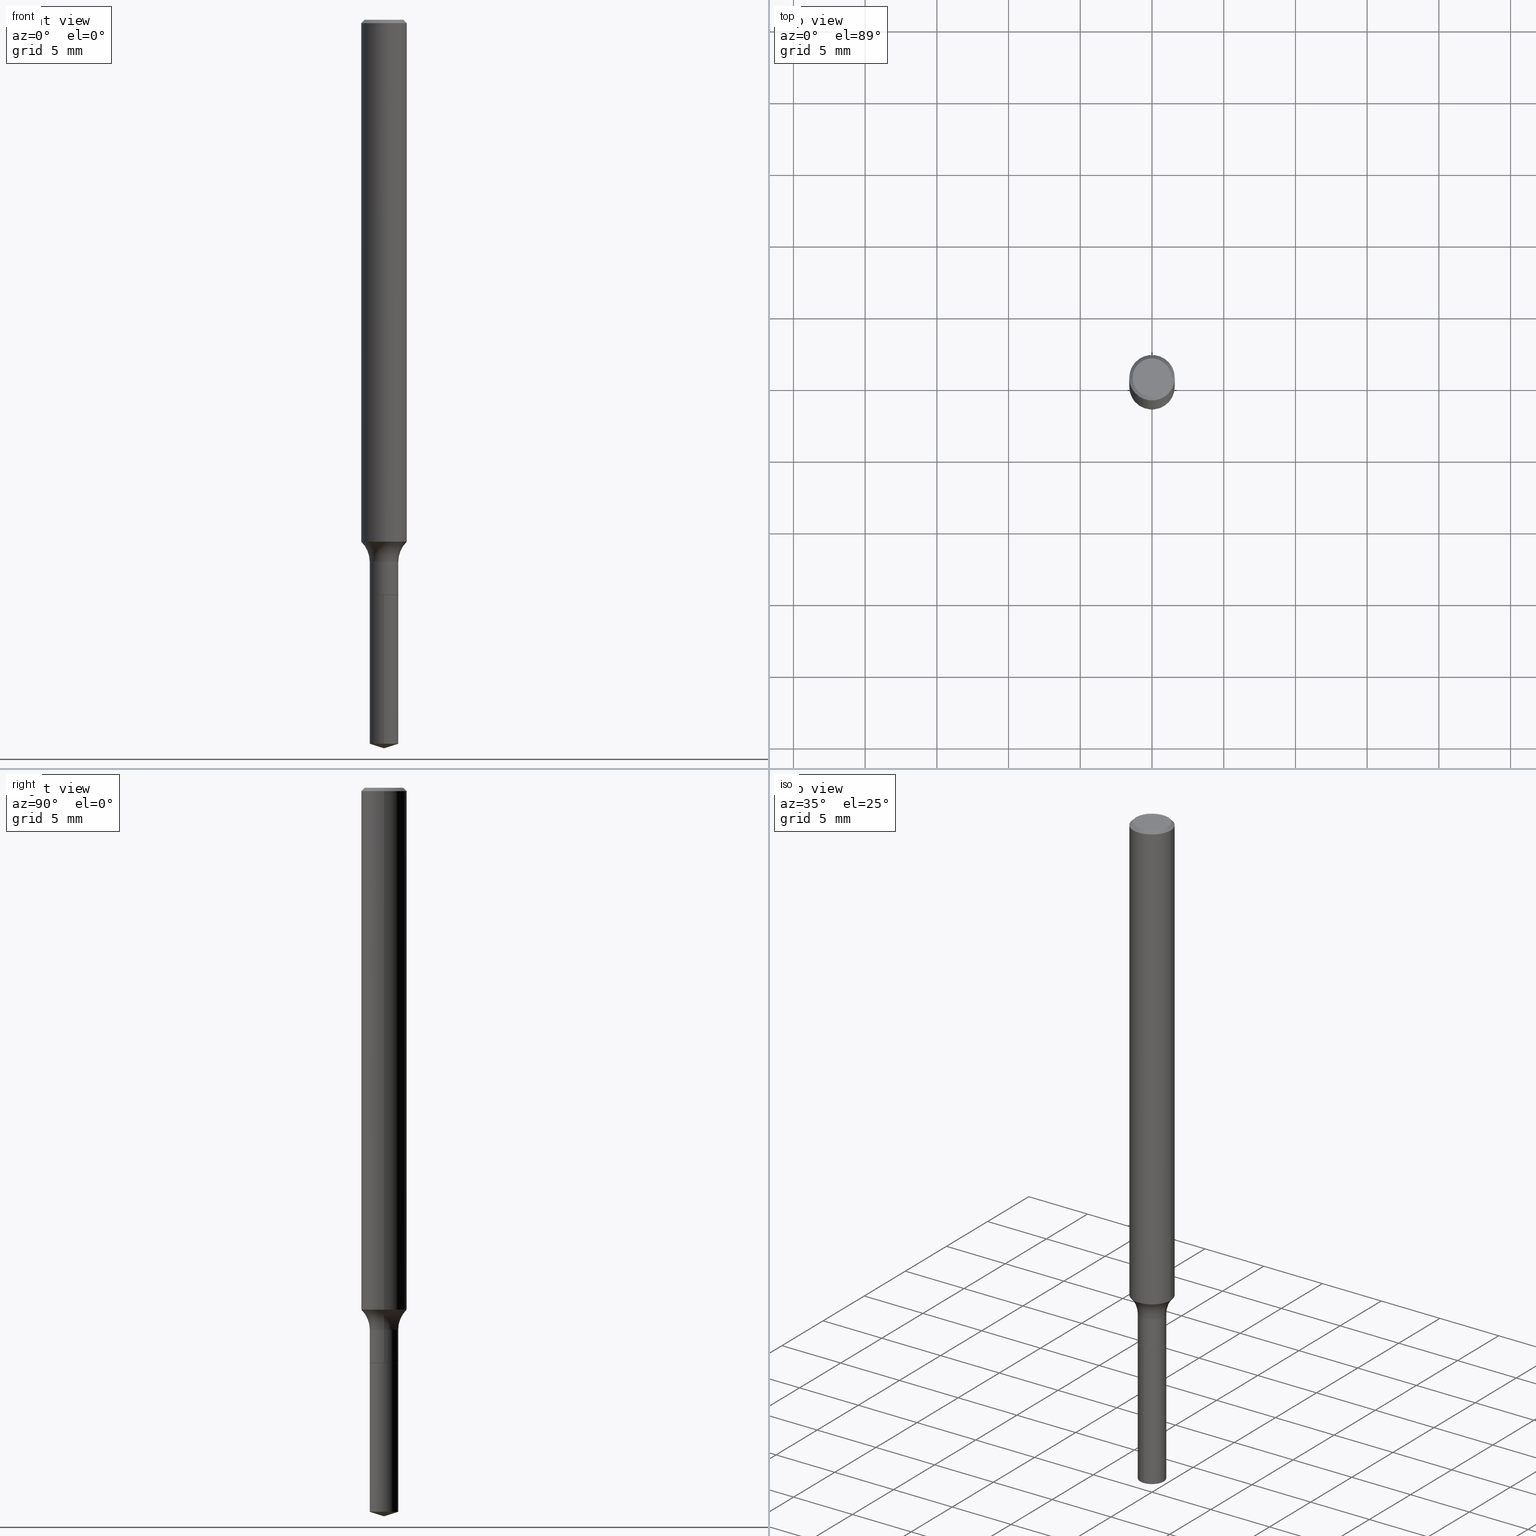
[diagram: canonical four-view strip — front | top / right | iso, engineering-drawing reading convention]
A machine part, canonical four-view strip (front | top / right | iso — engineering-drawing reading convention). The complete STEP part file that produces these views, byte-faithful:
ISO-10303-21;
HEADER;
FILE_DESCRIPTION (( 'STEP AP203' ),
    '1' );
FILE_NAME ('64506.STEP',
    '2024-04-19T15:40:45',
    ( '' ),
    ( '' ),
    'SwSTEP 2.0',
    'SolidWorks 2023',
    '' );
FILE_SCHEMA (( 'CONFIG_CONTROL_DESIGN' ));
ENDSEC;

DATA;
#1 = CALENDAR_DATE ( 2024, 19, 4 ) ;
#2 = DIRECTION ( 'NONE',  ( -2.445468806185136597E-29, 3.491481338843145583E-15, 1.000000000000000000 ) ) ;
#3 = EDGE_CURVE ( 'NONE', #393, #280, #43, .T. ) ;
#4 = EDGE_LOOP ( 'NONE', ( #198, #55, #113, #190 ) ) ;
#5 = CONICAL_SURFACE ( 'NONE', #302, 0.06250000000000001388, 0.7853981633974449483 ) ;
#6 = DIRECTION ( 'NONE',  ( -6.982962677686264344E-15, -1.000000000000000000, 6.960122276851625723E-15 ) ) ;
#7 = ORIENTED_EDGE ( 'NONE', *, *, #69, .T. ) ;
#8 = PERSON_AND_ORGANIZATION ( #367, #98 ) ;
#9 = CYLINDRICAL_SURFACE ( 'NONE', #241, 0.03924999999999997935 ) ;
#10 = ORIENTED_EDGE ( 'NONE', *, *, #69, .F. ) ;
#11 = CC_DESIGN_DATE_AND_TIME_ASSIGNMENT ( #300, #150, ( #412 ) ) ;
#12 = PERSON_AND_ORGANIZATION_ROLE ( 'classification_officer' ) ;
#13 = CARTESIAN_POINT ( 'NONE',  ( 3.860172510563238293E-29, -5.511303293363906070E-15, -1.578500000000000014 ) ) ;
#14 = ORIENTED_EDGE ( 'NONE', *, *, #454, .F. ) ;
#15 = LOCAL_TIME ( 11, 40, 45.00000000000000000, #268 ) ;
#16 = CARTESIAN_POINT ( 'NONE',  ( -0.03924999999999997935, -5.073902016794587862E-15, -1.488199999999999967 ) ) ;
#17 = CONICAL_SURFACE ( 'NONE', #291, 0.03874999999999999972, 0.7853981633975420928 ) ;
#18 = CARTESIAN_POINT ( 'NONE',  ( -8.782355238379108562E-48, 1.253887571509288664E-33, 3.591276738499616421E-19 ) ) ;
#19 = DIRECTION ( 'NONE',  ( -2.445468806185136597E-29, 3.491481338843145583E-15, 1.000000000000000000 ) ) ;
#20 = DIRECTION ( 'NONE',  ( -6.982962677686264344E-15, -1.000000000000000000, 6.960122276851625723E-15 ) ) ;
#21 = EDGE_CURVE ( 'NONE', #270, #196, #42, .T. ) ;
#22 = CARTESIAN_POINT ( 'NONE',  ( 0.03874999999999999972, -5.781893097124248589E-15, -1.578500000000000014 ) ) ;
#23 = CARTESIAN_POINT ( 'NONE',  ( 0.1172499999999999515, -6.014774902425083476E-15, -1.488199999999999967 ) ) ;
#24 = CARTESIAN_POINT ( 'NONE',  ( 0.05312499999999999861, -4.129888592719940335E-16, 3.591276738527027701E-19 ) ) ;
#25 = CARTESIAN_POINT ( 'NONE',  ( 2.788880237858778304E-16, 0.03924999999999448375, -1.578500000000000458 ) ) ;
#26 = EDGE_CURVE ( 'NONE', #278, #379, #485, .T. ) ;
#27 = DIRECTION ( 'NONE',  ( 1.000000000000000000, -6.982962677686279332E-15, 0.000000000000000000 ) ) ;
#28 = DIRECTION ( 'NONE',  ( -6.982962677686264344E-15, -1.000000000000000000, 6.960122276851625723E-15 ) ) ;
#29 = FACE_OUTER_BOUND ( 'NONE', #235, .T. ) ;
#30 = PERSON_AND_ORGANIZATION ( #367, #98 ) ;
#31 = CC_DESIGN_SECURITY_CLASSIFICATION ( #412, ( #160 ) ) ;
#32 = EDGE_CURVE ( 'NONE', #347, #278, #304, .T. ) ;
#33 = DIRECTION ( 'NONE',  ( -2.445468806185136597E-29, 3.491481338843145583E-15, 1.000000000000000000 ) ) ;
#34 = AXIS2_PLACEMENT_3D ( 'NONE', #298, #447, #292 ) ;
#35 = ORIENTED_EDGE ( 'NONE', *, *, #21, .T. ) ;
#36 = TOROIDAL_SURFACE ( 'NONE', #314, 0.1172499999999999515, 0.07800000000000002764 ) ;
#37 = DATE_TIME_ROLE ( 'creation_date' ) ;
#38 = ORIENTED_EDGE ( 'NONE', *, *, #272, .F. ) ;
#39 = PRODUCT_RELATED_PRODUCT_CATEGORY ( 'detail', '', ( #403 ) ) ;
#40 = VERTEX_POINT ( 'NONE', #209 ) ;
#41 = DIRECTION ( 'NONE',  ( -2.445497786543332994E-29, 3.491439837320748932E-15, 1.000000000000000000 ) ) ;
#42 = LINE ( 'NONE', #155, #413 ) ;
#43 = CIRCLE ( 'NONE', #91, 0.05312499999999999861 ) ;
#44 = PERSON_AND_ORGANIZATION ( #367, #98 ) ;
#45 = ORIENTED_EDGE ( 'NONE', *, *, #249, .T. ) ;
#46 = ADVANCED_FACE ( 'NONE', ( #327 ), #17, .T. ) ;
#47 = PERSON_AND_ORGANIZATION_ROLE ( 'design_supplier' ) ;
#48 = DIRECTION ( 'NONE',  ( 1.000000000000000000, -6.982962677686266711E-15, 4.876176775795935793E-29 ) ) ;
#49 = ORIENTED_EDGE ( 'NONE', *, *, #59, .F. ) ;
#50 = DIRECTION ( 'NONE',  ( -2.445468806185136877E-29, 3.491481338843145188E-15, 1.000000000000000000 ) ) ;
#51 = ORIENTED_EDGE ( 'NONE', *, *, #362, .F. ) ;
#52 = CONICAL_SURFACE ( 'NONE', #250, 0.03874999999999999972, 0.7853981633975420928 ) ;
#53 = EDGE_CURVE ( 'NONE', #187, #85, #318, .T. ) ;
#54 = CARTESIAN_POINT ( 'NONE',  ( 2.292627005798583689E-31, -3.273263755165475115E-17, -0.009375000000000074246 ) ) ;
#55 = ORIENTED_EDGE ( 'NONE', *, *, #59, .T. ) ;
#56 = FACE_OUTER_BOUND ( 'NONE', #452, .T. ) ;
#57 = CARTESIAN_POINT ( 'NONE',  ( -4.391177619189554281E-48, 6.269437857546443321E-34, 1.795638369249808211E-19 ) ) ;
#58 = CARTESIAN_POINT ( 'NONE',  ( 0.06250000000000020817, -5.438485952664117862E-15, -1.432644284722451422 ) ) ;
#59 = EDGE_CURVE ( 'NONE', #85, #313, #164, .T. ) ;
#60 = TOROIDAL_SURFACE ( 'NONE', #260, 0.1172499999999999515, 0.07800000000000002764 ) ;
#61 = DIRECTION ( 'NONE',  ( -6.659769872151614734E-15, -0.9537169507482242681, 0.3007057995042813903 ) ) ;
#62 = APPROVAL ( #421, 'UNSPECIFIED' ) ;
#63 = DIRECTION ( 'NONE',  ( -2.445497786543332994E-29, 3.491439837320748932E-15, 1.000000000000000000 ) ) ;
#64 = CARTESIAN_POINT ( 'NONE',  ( 3.860172510563238293E-29, -5.511303293363906070E-15, -1.578500000000000014 ) ) ;
#65 = EDGE_CURVE ( 'NONE', #85, #470, #191, .T. ) ;
#66 = CARTESIAN_POINT ( 'NONE',  ( 3.860172510563238293E-29, -5.511303293363906070E-15, -1.578500000000000014 ) ) ;
#67 = CALENDAR_DATE ( 2024, 19, 4 ) ;
#68 = VECTOR ( 'NONE', #84, 39.37007874015748143 ) ;
#69 = EDGE_CURVE ( 'NONE', #379, #146, #211, .T. ) ;
#70 = ORIENTED_EDGE ( 'NONE', *, *, #53, .T. ) ;
#71 = VERTEX_POINT ( 'NONE', #478 ) ;
#72 = DIRECTION ( 'NONE',  ( -6.982962677686267499E-15, -1.000000000000000000, 3.500519750498801856E-15 ) ) ;
#73 =( NAMED_UNIT ( * ) SI_UNIT ( $, .STERADIAN. ) SOLID_ANGLE_UNIT ( ) );
#74 = CIRCLE ( 'NONE', #448, 0.03874999999999999972 ) ;
#75 = EDGE_LOOP ( 'NONE', ( #339, #232, #10, #121 ) ) ;
#76 = VECTOR ( 'NONE', #283, 39.37007874015748143 ) ;
#77 = ORIENTED_EDGE ( 'NONE', *, *, #203, .T. ) ;
#78 = APPROVAL_DATE_TIME ( #114, #62 ) ;
#79 = EDGE_CURVE ( 'NONE', #83, #379, #329, .T. ) ;
#80 = ORIENTED_EDGE ( 'NONE', *, *, #3, .T. ) ;
#81 = EDGE_LOOP ( 'NONE', ( #297, #128 ) ) ;
#82 = CONICAL_SURFACE ( 'NONE', #350, 124.8659371009115944, 1.265363707695883688 ) ;
#83 = VERTEX_POINT ( 'NONE', #244 ) ;
#84 = DIRECTION ( 'NONE',  ( -2.445468806185136877E-29, 3.491481338843145188E-15, 1.000000000000000000 ) ) ;
#85 = VERTEX_POINT ( 'NONE', #406 ) ;
#86 = EDGE_CURVE ( 'NONE', #40, #431, #404, .T. ) ;
#87 = CARTESIAN_POINT ( 'NONE',  ( 3.860172510563238293E-29, -5.511303293363906070E-15, -1.578500000000000014 ) ) ;
#88 = VERTEX_POINT ( 'NONE', #364 ) ;
#89 = AXIS2_PLACEMENT_3D ( 'NONE', #353, #19, #163 ) ;
#90 = CARTESIAN_POINT ( 'NONE',  ( 3.860172510563238293E-29, -5.511303293363906070E-15, -1.578500000000000014 ) ) ;
#91 = AXIS2_PLACEMENT_3D ( 'NONE', #18, #396, #229 ) ;
#92 = DESIGN_CONTEXT ( 'detailed design', #216, 'design' ) ;
#93 = CARTESIAN_POINT ( 'NONE',  ( -0.06250000000000001388, 4.037025298037369984E-16, -0.009375000000000074246 ) ) ;
#94 = ADVANCED_FACE ( 'NONE', ( #256 ), #136, .F. ) ;
#95 = LINE ( 'NONE', #93, #124 ) ;
#96 = DIRECTION ( 'NONE',  ( -1.000000000000000000, 6.982962677686265922E-15, -4.876176775795935793E-29 ) ) ;
#97 = CC_DESIGN_PERSON_AND_ORGANIZATION_ASSIGNMENT ( #221, #365, ( #403 ) ) ;
#98 = ORGANIZATION ( 'UNSPECIFIED', 'UNSPECIFIED', '' ) ;
#99 = CYLINDRICAL_SURFACE ( 'NONE', #89, 0.06250000000000009714 ) ;
#100 = DIRECTION ( 'NONE',  ( -2.445468806185136597E-29, 3.491481338843145583E-15, 1.000000000000000000 ) ) ;
#101 = ADVANCED_FACE ( 'NONE', ( #29 ), #484, .T. ) ;
#102 = CARTESIAN_POINT ( 'NONE',  ( -2.740812850991374061E-16, -0.03925000000000695294, -1.987624522536499683 ) ) ;
#103 = DIRECTION ( 'NONE',  ( 1.000000000000000000, -6.982962677686263555E-15, 0.000000000000000000 ) ) ;
#104 = LOCAL_TIME ( 11, 40, 45.00000000000000000, #176 ) ;
#105 = ADVANCED_FACE ( 'NONE', ( #248 ), #402, .T. ) ;
#106 = VECTOR ( 'NONE', #321, 39.37007874015748143 ) ;
#107 = EDGE_LOOP ( 'NONE', ( #38, #70, #123 ) ) ;
#108 = AXIS2_PLACEMENT_3D ( 'NONE', #397, #317, #205 ) ;
#109 =( CONVERSION_BASED_UNIT ( 'INCH', #144 ) LENGTH_UNIT ( ) NAMED_UNIT ( #309 ) );
#110 = ORIENTED_EDGE ( 'NONE', *, *, #276, .T. ) ;
#111 = APPROVAL_DATE_TIME ( #453, #301 ) ;
#112 = ADVANCED_FACE ( 'NONE', ( #122 ), #36, .F. ) ;
#113 = ORIENTED_EDGE ( 'NONE', *, *, #246, .F. ) ;
#114 = DATE_AND_TIME ( #424, #290 ) ;
#115 = ORIENTED_EDGE ( 'NONE', *, *, #21, .F. ) ;
#116 = AXIS2_PLACEMENT_3D ( 'NONE', #154, #2, #127 ) ;
#117 = CARTESIAN_POINT ( 'NONE',  ( 0.06250000000000009714, -4.364351673553923597E-16, 3.047610484872464775E-30 ) ) ;
#118 = MANIFOLD_SOLID_BREP ( 'Body-Move/Copy2[2]', #134 ) ;
#119 = ORIENTED_EDGE ( 'NONE', *, *, #186, .F. ) ;
#120 = DIRECTION ( 'NONE',  ( -6.982962677686264344E-15, -1.000000000000000000, 6.960122276851625723E-15 ) ) ;
#121 = ORIENTED_EDGE ( 'NONE', *, *, #79, .F. ) ;
#122 = FACE_OUTER_BOUND ( 'NONE', #126, .T. ) ;
#123 = ORIENTED_EDGE ( 'NONE', *, *, #373, .F. ) ;
#124 = VECTOR ( 'NONE', #168, 39.37007874015748143 ) ;
#125 = AXIS2_PLACEMENT_3D ( 'NONE', #66, #389, #228 ) ;
#126 = EDGE_LOOP ( 'NONE', ( #388, #458, #427, #7 ) ) ;
#127 = DIRECTION ( 'NONE',  ( 1.000000000000000000, -6.982962677686279332E-15, 0.000000000000000000 ) ) ;
#128 = ORIENTED_EDGE ( 'NONE', *, *, #178, .T. ) ;
#129 = LINE ( 'NONE', #165, #215 ) ;
#130 = DIRECTION ( 'NONE',  ( 1.000000000000000000, -6.982962677686258033E-15, 0.000000000000000000 ) ) ;
#131 = AXIS2_PLACEMENT_3D ( 'NONE', #179, #491, #295 ) ;
#132 = ADVANCED_FACE ( 'NONE', ( #461 ), #156, .T. ) ;
#133 = CARTESIAN_POINT ( 'NONE',  ( -9.138849058750058869E-28, 1.304753161270459105E-13, 37.37007874015748143 ) ) ;
#134 = CLOSED_SHELL ( 'NONE', ( #46, #357, #410, #287, #219, #132, #112, #101, #487, #94, #143, #473 ) ) ;
#135 = CARTESIAN_POINT ( 'NONE',  ( -0.06250000000000020817, -4.557961575458662787E-15, -1.432644284722451422 ) ) ;
#136 = PLANE ( 'NONE',  #489 ) ;
#137 = CARTESIAN_POINT ( 'NONE',  ( -0.05312499999999999861, 3.873362110279099094E-16, 3.591276738473101181E-19 ) ) ;
#138 = DIRECTION ( 'NONE',  ( 1.000000000000000000, -6.982962677686263555E-15, 0.000000000000000000 ) ) ;
#139 = AXIS2_PLACEMENT_3D ( 'NONE', #360, #363, #28 ) ;
#140 = DIRECTION ( 'NONE',  ( -6.982962677686264344E-15, -1.000000000000000000, 6.960122276851625723E-15 ) ) ;
#141 = CIRCLE ( 'NONE', #422, 0.03925000000000000017 ) ;
#142 = DIRECTION ( 'NONE',  ( -2.445468806185136597E-29, 3.491481338843145583E-15, 1.000000000000000000 ) ) ;
#143 = ADVANCED_FACE ( 'NONE', ( #344 ), #385, .F. ) ;
#144 = LENGTH_MEASURE_WITH_UNIT ( LENGTH_MEASURE( 0.02539999999999999897 ), #180 );
#145 = APPLICATION_PROTOCOL_DEFINITION ( 'international standard', 'config_control_design', 1994, #417 ) ;
#146 = VERTEX_POINT ( 'NONE', #16 ) ;
#147 = APPROVAL_STATUS ( 'not_yet_approved' ) ;
#148 = ORIENTED_EDGE ( 'NONE', *, *, #65, .T. ) ;
#149 = ORIENTED_EDGE ( 'NONE', *, *, #53, .F. ) ;
#150 = DATE_TIME_ROLE ( 'classification_date' ) ;
#151 = AXIS2_PLACEMENT_3D ( 'NONE', #238, #435, #27 ) ;
#152 = EDGE_LOOP ( 'NONE', ( #159, #51 ) ) ;
#153 = CIRCLE ( 'NONE', #259, 0.03925000000000000017 ) ;
#154 = CARTESIAN_POINT ( 'NONE',  ( 3.858949776160146052E-29, -5.509557552694484566E-15, -1.578000000000000291 ) ) ;
#155 = CARTESIAN_POINT ( 'NONE',  ( -0.03874999999999999972, -5.235967983256867595E-15, -1.578500000000000014 ) ) ;
#156 = CYLINDRICAL_SURFACE ( 'NONE', #476, 0.03924999999999997935 ) ;
#157 = ORIENTED_EDGE ( 'NONE', *, *, #3, .F. ) ;
#158 = LINE ( 'NONE', #117, #456 ) ;
#159 = ORIENTED_EDGE ( 'NONE', *, *, #276, .F. ) ;
#160 = PRODUCT_DEFINITION_FORMATION_WITH_SPECIFIED_SOURCE ( 'ANY', '', #403, .NOT_KNOWN. ) ;
#161 = CARTESIAN_POINT ( 'NONE',  ( 0.000000000000000000, 0.000000000000000000, 0.000000000000000000 ) ) ;
#162 = ORIENTED_EDGE ( 'NONE', *, *, #224, .F. ) ;
#163 = DIRECTION ( 'NONE',  ( 1.000000000000000000, -6.982962677686266711E-15, 4.876176775795935793E-29 ) ) ;
#164 = LINE ( 'NONE', #25, #106 ) ;
#165 = CARTESIAN_POINT ( 'NONE',  ( 0.06250000000000001388, -4.615137624123755909E-16, -0.009375000000000074246 ) ) ;
#166 = DIRECTION ( 'NONE',  ( -2.445468806185136597E-29, 3.491481338843145583E-15, 1.000000000000000000 ) ) ;
#167 = APPROVAL_PERSON_ORGANIZATION ( #30, #301, #174 ) ;
#168 = DIRECTION ( 'NONE',  ( -0.7071067811865451302, 2.468850131082231817E-15, -0.7071067811865499042 ) ) ;
#169 =( GEOMETRIC_REPRESENTATION_CONTEXT ( 3 ) GLOBAL_UNCERTAINTY_ASSIGNED_CONTEXT ( ( #195 ) ) GLOBAL_UNIT_ASSIGNED_CONTEXT ( ( #109, #261, #73 ) ) REPRESENTATION_CONTEXT ( 'NONE', 'WORKASPACE' ) );
#170 = DIRECTION ( 'NONE',  ( -2.445497786543332994E-29, 3.491439837320748932E-15, 1.000000000000000000 ) ) ;
#171 = CARTESIAN_POINT ( 'NONE',  ( 4.860685624846846103E-29, -6.939736949772670000E-15, -1.987624522536499683 ) ) ;
#172 = DIRECTION ( 'NONE',  ( -1.000000000000000000, 6.982962677686265922E-15, 0.000000000000000000 ) ) ;
#173 = CARTESIAN_POINT ( 'NONE',  ( 2.292627005798583689E-31, -3.273263755165475115E-17, -0.009375000000000074246 ) ) ;
#174 = APPROVAL_ROLE ( '' ) ;
#175 = CIRCLE ( 'NONE', #369, 0.03924999999999997935 ) ;
#176 = COORDINATED_UNIVERSAL_TIME_OFFSET ( 5, 0, .BEHIND. ) ;
#177 = ORIENTED_EDGE ( 'NONE', *, *, #366, .F. ) ;
#178 = EDGE_CURVE ( 'NONE', #313, #88, #141, .T. ) ;
#179 = CARTESIAN_POINT ( 'NONE',  ( 2.292627005798583689E-31, -3.273263755165475115E-17, -0.009375000000000074246 ) ) ;
#180 =( LENGTH_UNIT ( ) NAMED_UNIT ( * ) SI_UNIT ( $, .METRE. ) );
#181 = CIRCLE ( 'NONE', #131, 0.06250000000000001388 ) ;
#182 = AXIS2_PLACEMENT_3D ( 'NONE', #356, #100, #472 ) ;
#183 = PERSON_AND_ORGANIZATION ( #367, #98 ) ;
#184 = EDGE_LOOP ( 'NONE', ( #115, #204, #415, #177 ) ) ;
#185 = CARTESIAN_POINT ( 'NONE',  ( 3.639346677364720273E-29, -5.196022528466369115E-15, -1.488199999999999967 ) ) ;
#186 = EDGE_CURVE ( 'NONE', #196, #146, #469, .T. ) ;
#187 = VERTEX_POINT ( 'NONE', #225 ) ;
#188 = CARTESIAN_POINT ( 'NONE',  ( -0.03924999999999998629, -5.073902016794587862E-15, -1.578000000000000291 ) ) ;
#189 = CIRCLE ( 'NONE', #151, 0.03924999999999998629 ) ;
#190 = ORIENTED_EDGE ( 'NONE', *, *, #299, .F. ) ;
#191 = CIRCLE ( 'NONE', #201, 0.03925000000000000017 ) ;
#192 = VECTOR ( 'NONE', #269, 39.37007874015748143 ) ;
#193 = PERSON_AND_ORGANIZATION ( #367, #98 ) ;
#194 = DIRECTION ( 'NONE',  ( 1.000000000000000000, -6.982962677686267499E-15, 4.883557194083113462E-29 ) ) ;
#195 = UNCERTAINTY_MEASURE_WITH_UNIT (LENGTH_MEASURE( 1.000000000000000082E-05 ), #109, 'distance_accuracy_value', 'NONE');
#196 = VERTEX_POINT ( 'NONE', #188 ) ;
#197 = EDGE_CURVE ( 'NONE', #83, #196, #233, .T. ) ;
#198 = ORIENTED_EDGE ( 'NONE', *, *, #373, .T. ) ;
#199 = CARTESIAN_POINT ( 'NONE',  ( 3.860172510563238293E-29, -5.511303293363906070E-15, -1.578500000000000014 ) ) ;
#200 = EDGE_LOOP ( 'NONE', ( #110, #35, #372, #223 ) ) ;
#201 = AXIS2_PLACEMENT_3D ( 'NONE', #206, #170, #20 ) ;
#202 = FACE_OUTER_BOUND ( 'NONE', #310, .T. ) ;
#203 = EDGE_CURVE ( 'NONE', #146, #379, #175, .T. ) ;
#204 = ORIENTED_EDGE ( 'NONE', *, *, #362, .T. ) ;
#205 = DIRECTION ( 'NONE',  ( 1.000000000000000000, -6.982962677686258033E-15, 0.000000000000000000 ) ) ;
#206 = CARTESIAN_POINT ( 'NONE',  ( 4.860685624846846103E-29, -6.939736949772670000E-15, -1.987624522536499683 ) ) ;
#207 = ADVANCED_BREP_SHAPE_REPRESENTATION ( '64506', ( #266, #118, #34 ), #169 ) ;
#208 = FACE_OUTER_BOUND ( 'NONE', #425, .T. ) ;
#209 = CARTESIAN_POINT ( 'NONE',  ( -0.06250000000000001388, -2.073302501580125400E-15, -0.009375000000000074246 ) ) ;
#210 = VECTOR ( 'NONE', #477, 39.37007874015748143 ) ;
#211 = CIRCLE ( 'NONE', #182, 0.03924999999999997935 ) ;
#212 = FACE_OUTER_BOUND ( 'NONE', #81, .T. ) ;
#213 = LINE ( 'NONE', #395, #401 ) ;
#214 = DIRECTION ( 'NONE',  ( 1.000000000000000000, -6.982962677686265922E-15, 0.000000000000000000 ) ) ;
#215 = VECTOR ( 'NONE', #475, 39.37007874015748143 ) ;
#216 = APPLICATION_CONTEXT ( 'configuration controlled 3d designs of mechanical parts and assemblies' ) ;
#217 = PERSON_AND_ORGANIZATION_ROLE ( 'creator' ) ;
#218 = EDGE_LOOP ( 'NONE', ( #119, #429, #433, #336 ) ) ;
#219 = ADVANCED_FACE ( 'NONE', ( #457 ), #9, .T. ) ;
#220 = ORIENTED_EDGE ( 'NONE', *, *, #272, .T. ) ;
#221 = PERSON_AND_ORGANIZATION ( #367, #98 ) ;
#222 = CC_DESIGN_APPROVAL ( #371, ( #160 ) ) ;
#223 = ORIENTED_EDGE ( 'NONE', *, *, #451, .F. ) ;
#224 = EDGE_CURVE ( 'NONE', #278, #431, #158, .T. ) ;
#225 = CARTESIAN_POINT ( 'NONE',  ( 4.890995573086665988E-29, -6.982879674641497074E-15, -2.000000000000000000 ) ) ;
#226 = ORIENTED_EDGE ( 'NONE', *, *, #440, .T. ) ;
#227 = APPROVAL_DATE_TIME ( #384, #371 ) ;
#228 = DIRECTION ( 'NONE',  ( -6.982962677686264344E-15, -1.000000000000000000, 6.960122276851625723E-15 ) ) ;
#229 = DIRECTION ( 'NONE',  ( 1.000000000000000000, -6.982962677686266711E-15, 4.876153107228683844E-29 ) ) ;
#230 = APPROVAL_STATUS ( 'not_yet_approved' ) ;
#231 = CARTESIAN_POINT ( 'NONE',  ( -8.782355238379108562E-48, 1.253887571509288664E-33, 3.591276738499616421E-19 ) ) ;
#232 = ORIENTED_EDGE ( 'NONE', *, *, #186, .T. ) ;
#233 = CIRCLE ( 'NONE', #116, 0.03924999999999998629 ) ;
#234 = CARTESIAN_POINT ( 'NONE',  ( -0.03924999999999997935, 2.788880237858391762E-16, -1.930682022925049823E-30 ) ) ;
#235 = EDGE_LOOP ( 'NONE', ( #351, #419, #374, #240 ) ) ;
#236 = CARTESIAN_POINT ( 'NONE',  ( -0.03874999999999999972, -5.233318756082756394E-15, -1.578500000000000014 ) ) ;
#237 = EDGE_LOOP ( 'NONE', ( #149, #220, #465 ) ) ;
#238 = CARTESIAN_POINT ( 'NONE',  ( 3.858949776160146052E-29, -5.509557552694484566E-15, -1.578000000000000291 ) ) ;
#239 = CIRCLE ( 'NONE', #466, 0.07800000000000002764 ) ;
#240 = ORIENTED_EDGE ( 'NONE', *, *, #86, .F. ) ;
#241 = AXIS2_PLACEMENT_3D ( 'NONE', #273, #275, #48 ) ;
#242 = CC_DESIGN_PERSON_AND_ORGANIZATION_ASSIGNMENT ( #8, #47, ( #160 ) ) ;
#243 = CARTESIAN_POINT ( 'NONE',  ( 0.03924999999999997935, -5.470103813565554641E-15, -1.488199999999999967 ) ) ;
#244 = CARTESIAN_POINT ( 'NONE',  ( 0.03924999999999998629, -5.783638837793670882E-15, -1.578000000000000291 ) ) ;
#245 = CYLINDRICAL_SURFACE ( 'NONE', #139, 0.03925000000000000017 ) ;
#246 = EDGE_CURVE ( 'NONE', #88, #313, #153, .T. ) ;
#247 = PLANE ( 'NONE',  #257 ) ;
#248 = FACE_OUTER_BOUND ( 'NONE', #4, .T. ) ;
#249 = EDGE_CURVE ( 'NONE', #280, #393, #284, .T. ) ;
#250 = AXIS2_PLACEMENT_3D ( 'NONE', #332, #33, #103 ) ;
#251 = CLOSED_SHELL ( 'NONE', ( #105, #480, #407, #325, #331 ) ) ;
#252 = DIRECTION ( 'NONE',  ( 1.000000000000000000, -6.982962677686263555E-15, 0.000000000000000000 ) ) ;
#253 = CARTESIAN_POINT ( 'NONE',  ( 0.03924999999999997935, -2.740812850991858225E-16, 1.913899384499903832E-30 ) ) ;
#254 = PRODUCT_DEFINITION ( 'UNKNOWN', '', #160, #92 ) ;
#255 = DIRECTION ( 'NONE',  ( 0.7071067811866138531, -2.468850131082952047E-15, 0.7071067811864811814 ) ) ;
#256 = FACE_OUTER_BOUND ( 'NONE', #316, .T. ) ;
#257 = AXIS2_PLACEMENT_3D ( 'NONE', #90, #289, #482 ) ;
#258 = CARTESIAN_POINT ( 'NONE',  ( -0.1172499999999999515, -4.362911170787651893E-15, -1.488199999999999967 ) ) ;
#259 = AXIS2_PLACEMENT_3D ( 'NONE', #312, #41, #120 ) ;
#260 = AXIS2_PLACEMENT_3D ( 'NONE', #405, #471, #358 ) ;
#261 =( NAMED_UNIT ( * ) PLANE_ANGLE_UNIT ( ) SI_UNIT ( $, .RADIAN. ) );
#262 = EDGE_CURVE ( 'NONE', #347, #40, #464, .T. ) ;
#263 = CALENDAR_DATE ( 2024, 19, 4 ) ;
#264 = ORIENTED_EDGE ( 'NONE', *, *, #394, .F. ) ;
#265 = CONICAL_SURFACE ( 'NONE', #488, 0.06250000000000001388, 0.7853981633974449483 ) ;
#266 = MANIFOLD_SOLID_BREP ( 'Body-Move/Copy2[1]', #251 ) ;
#267 = EDGE_LOOP ( 'NONE', ( #264, #157, #423, #342 ) ) ;
#268 = COORDINATED_UNIVERSAL_TIME_OFFSET ( 5, 0, .BEHIND. ) ;
#269 = DIRECTION ( 'NONE',  ( -2.445468806185136877E-29, 3.491481338843145188E-15, 1.000000000000000000 ) ) ;
#270 = VERTEX_POINT ( 'NONE', #236 ) ;
#271 = APPROVAL_ROLE ( '' ) ;
#272 = EDGE_CURVE ( 'NONE', #187, #470, #213, .T. ) ;
#273 = CARTESIAN_POINT ( 'NONE',  ( 0.000000000000000000, 0.000000000000000000, 0.000000000000000000 ) ) ;
#274 = ORIENTED_EDGE ( 'NONE', *, *, #454, .T. ) ;
#275 = DIRECTION ( 'NONE',  ( -2.445468806185136597E-29, 3.491481338843145583E-15, 1.000000000000000000 ) ) ;
#276 = EDGE_CURVE ( 'NONE', #71, #270, #74, .T. ) ;
#277 = ORIENTED_EDGE ( 'NONE', *, *, #249, .F. ) ;
#278 = VERTEX_POINT ( 'NONE', #58 ) ;
#279 = DIRECTION ( 'NONE',  ( -2.445468806185136597E-29, 3.491481338843145583E-15, 1.000000000000000000 ) ) ;
#280 = VERTEX_POINT ( 'NONE', #24 ) ;
#281 = CARTESIAN_POINT ( 'NONE',  ( 0.06250000000000001388, -4.691678049070464390E-16, -0.009375000000000074246 ) ) ;
#282 = CC_DESIGN_APPROVAL ( #301, ( #254 ) ) ;
#283 = DIRECTION ( 'NONE',  ( -2.445468806185136877E-29, 3.491481338843145188E-15, 1.000000000000000000 ) ) ;
#284 = CIRCLE ( 'NONE', #386, 0.05312499999999999861 ) ;
#285 = FACE_OUTER_BOUND ( 'NONE', #492, .T. ) ;
#286 = DIRECTION ( 'NONE',  ( 2.445468806185136597E-29, -3.491481338843145583E-15, -1.000000000000000000 ) ) ;
#287 = ADVANCED_FACE ( 'NONE', ( #208 ), #60, .F. ) ;
#288 = DIRECTION ( 'NONE',  ( 2.438088387897960049E-29, -3.491481338843145188E-15, -1.000000000000000000 ) ) ;
#289 = DIRECTION ( 'NONE',  ( 2.445497786543332714E-29, -3.491439837320748932E-15, -1.000000000000000000 ) ) ;
#290 = LOCAL_TIME ( 11, 40, 45.00000000000000000, #380 ) ;
#291 = AXIS2_PLACEMENT_3D ( 'NONE', #64, #481, #138 ) ;
#292 = DIRECTION ( 'NONE',  ( 1.000000000000000000, 0.000000000000000000, 0.000000000000000000 ) ) ;
#293 = CARTESIAN_POINT ( 'NONE',  ( 0.000000000000000000, 0.000000000000000000, 0.000000000000000000 ) ) ;
#294 = EDGE_CURVE ( 'NONE', #393, #40, #95, .T. ) ;
#295 = DIRECTION ( 'NONE',  ( 1.000000000000000000, -6.982962677686265922E-15, 0.000000000000000000 ) ) ;
#296 = MECHANICAL_CONTEXT ( 'NONE', #417, 'mechanical' ) ;
#297 = ORIENTED_EDGE ( 'NONE', *, *, #246, .T. ) ;
#298 = CARTESIAN_POINT ( 'NONE',  ( 0.000000000000000000, 0.000000000000000000, 0.000000000000000000 ) ) ;
#299 = EDGE_CURVE ( 'NONE', #470, #88, #323, .T. ) ;
#300 = DATE_AND_TIME ( #1, #15 ) ;
#301 = APPROVAL ( #147, 'UNSPECIFIED' ) ;
#302 = AXIS2_PLACEMENT_3D ( 'NONE', #450, #446, #486 ) ;
#303 = CARTESIAN_POINT ( 'NONE',  ( 3.639346677364720273E-29, -5.196022528466369115E-15, -1.488199999999999967 ) ) ;
#304 = CIRCLE ( 'NONE', #322, 0.06250000000000018041 ) ;
#305 = ORIENTED_EDGE ( 'NONE', *, *, #26, .F. ) ;
#306 = DIRECTION ( 'NONE',  ( -2.445468806185136597E-29, 3.491481338843145583E-15, 1.000000000000000000 ) ) ;
#307 = ORIENTED_EDGE ( 'NONE', *, *, #463, .T. ) ;
#308 = DIRECTION ( 'NONE',  ( -2.445468806185136597E-29, 3.491481338843145583E-15, 1.000000000000000000 ) ) ;
#309 = DIMENSIONAL_EXPONENTS ( 1.000000000000000000, 0.000000000000000000, 0.000000000000000000, 0.000000000000000000, 0.000000000000000000, 0.000000000000000000, 0.000000000000000000 ) ;
#310 = EDGE_LOOP ( 'NONE', ( #226, #377, #14, #162 ) ) ;
#311 = APPROVAL_ROLE ( '' ) ;
#312 = CARTESIAN_POINT ( 'NONE',  ( 3.860172510563238293E-29, -5.511303293363906070E-15, -1.578500000000000014 ) ) ;
#313 = VERTEX_POINT ( 'NONE', #432 ) ;
#314 = AXIS2_PLACEMENT_3D ( 'NONE', #185, #381, #194 ) ;
#315 = DIRECTION ( 'NONE',  ( 1.000000000000000000, -6.982962677686265922E-15, 4.876176775795935793E-29 ) ) ;
#316 = EDGE_LOOP ( 'NONE', ( #80, #45 ) ) ;
#317 = DIRECTION ( 'NONE',  ( -2.445468806185136597E-29, 3.491481338843145583E-15, 1.000000000000000000 ) ) ;
#318 = LINE ( 'NONE', #359, #428 ) ;
#319 = DIRECTION ( 'NONE',  ( -2.445468806185136597E-29, 3.491481338843145583E-15, 1.000000000000000000 ) ) ;
#320 = LOCAL_TIME ( 11, 40, 45.00000000000000000, #338 ) ;
#321 = DIRECTION ( 'NONE',  ( -2.445497786543332994E-29, 3.491439837320748932E-15, 1.000000000000000000 ) ) ;
#322 = AXIS2_PLACEMENT_3D ( 'NONE', #439, #166, #130 ) ;
#323 = LINE ( 'NONE', #438, #210 ) ;
#324 = DIRECTION ( 'NONE',  ( 6.776566513254239994E-15, 0.9537169507482263775, 0.3007057995042747844 ) ) ;
#325 = ADVANCED_FACE ( 'NONE', ( #285 ), #245, .T. ) ;
#326 = PRODUCT_DEFINITION_SHAPE ( 'NONE', 'NONE',  #254 ) ;
#327 = FACE_OUTER_BOUND ( 'NONE', #200, .T. ) ;
#328 = DIRECTION ( 'NONE',  ( -6.982962677686267499E-15, -1.000000000000000000, 3.500519750498801856E-15 ) ) ;
#329 = LINE ( 'NONE', #253, #76 ) ;
#330 = FACE_OUTER_BOUND ( 'NONE', #267, .T. ) ;
#331 = ADVANCED_FACE ( 'NONE', ( #212 ), #247, .F. ) ;
#332 = CARTESIAN_POINT ( 'NONE',  ( 3.860172510563238293E-29, -5.511303293363906070E-15, -1.578500000000000014 ) ) ;
#333 = DIRECTION ( 'NONE',  ( -1.000000000000000000, 7.105427357601001859E-15, 0.000000000000000000 ) ) ;
#334 = AXIS2_PLACEMENT_3D ( 'NONE', #87, #400, #437 ) ;
#335 = AXIS2_PLACEMENT_3D ( 'NONE', #23, #398, #361 ) ;
#336 = ORIENTED_EDGE ( 'NONE', *, *, #203, .F. ) ;
#337 = CC_DESIGN_PERSON_AND_ORGANIZATION_ASSIGNMENT ( #193, #391, ( #160 ) ) ;
#338 = COORDINATED_UNIVERSAL_TIME_OFFSET ( 5, 0, .BEHIND. ) ;
#339 = ORIENTED_EDGE ( 'NONE', *, *, #197, .T. ) ;
#340 = VECTOR ( 'NONE', #255, 39.37007874015748143 ) ;
#341 = AXIS2_PLACEMENT_3D ( 'NONE', #13, #349, #315 ) ;
#342 = ORIENTED_EDGE ( 'NONE', *, *, #86, .T. ) ;
#343 = PERSON_AND_ORGANIZATION ( #367, #98 ) ;
#344 = FACE_OUTER_BOUND ( 'NONE', #152, .T. ) ;
#345 = ORIENTED_EDGE ( 'NONE', *, *, #394, .T. ) ;
#346 = DIRECTION ( 'NONE',  ( 1.000000000000000000, -6.982962677686266711E-15, 4.876176775795935793E-29 ) ) ;
#347 = VERTEX_POINT ( 'NONE', #135 ) ;
#348 = SHAPE_DEFINITION_REPRESENTATION ( #326, #207 ) ;
#349 = DIRECTION ( 'NONE',  ( -2.438088387897960049E-29, 3.491481338843145188E-15, 1.000000000000000000 ) ) ;
#350 = AXIS2_PLACEMENT_3D ( 'NONE', #133, #63, #328 ) ;
#351 = ORIENTED_EDGE ( 'NONE', *, *, #262, .F. ) ;
#352 = AXIS2_PLACEMENT_3D ( 'NONE', #293, #444, #409 ) ;
#353 = CARTESIAN_POINT ( 'NONE',  ( 0.000000000000000000, 0.000000000000000000, 0.000000000000000000 ) ) ;
#354 = CC_DESIGN_PERSON_AND_ORGANIZATION_ASSIGNMENT ( #343, #12, ( #412 ) ) ;
#355 = LINE ( 'NONE', #22, #340 ) ;
#356 = CARTESIAN_POINT ( 'NONE',  ( 3.639346677364720273E-29, -5.196022528466369115E-15, -1.488199999999999967 ) ) ;
#357 = ADVANCED_FACE ( 'NONE', ( #56 ), #265, .T. ) ;
#358 = DIRECTION ( 'NONE',  ( 1.000000000000000000, -6.982962677686267499E-15, 4.883557194083113462E-29 ) ) ;
#359 = CARTESIAN_POINT ( 'NONE',  ( 4.890996375354659309E-29, -6.982879674641497074E-15, -2.000000000000000000 ) ) ;
#360 = CARTESIAN_POINT ( 'NONE',  ( 3.860172510563238293E-29, -5.511303293363906070E-15, -1.578500000000000014 ) ) ;
#361 = DIRECTION ( 'NONE',  ( 1.000000000000000000, -6.982962677686268288E-15, 0.000000000000000000 ) ) ;
#362 = EDGE_CURVE ( 'NONE', #270, #71, #383, .T. ) ;
#363 = DIRECTION ( 'NONE',  ( -2.445497786543332994E-29, 3.491439837320748932E-15, 1.000000000000000000 ) ) ;
#364 = CARTESIAN_POINT ( 'NONE',  ( -2.740812850991473162E-16, -0.03925000000000550965, -1.578499999999999792 ) ) ;
#365 = PERSON_AND_ORGANIZATION_ROLE ( 'design_owner' ) ;
#366 = EDGE_CURVE ( 'NONE', #196, #83, #189, .T. ) ;
#367 = PERSON ( 'UNSPECIFIED', 'UNSPECIFIED', 'UNSPECIFIED', ('UNSPECIFIED'), ('UNSPECIFIED'), ('UNSPECIFIED') ) ;
#368 = CIRCLE ( 'NONE', #420, 0.03925000000000000017 ) ;
#369 = AXIS2_PLACEMENT_3D ( 'NONE', #303, #279, #378 ) ;
#370 = DIRECTION ( 'NONE',  ( -2.445497786543332994E-29, 3.491439837320748932E-15, 1.000000000000000000 ) ) ;
#371 = APPROVAL ( #230, 'UNSPECIFIED' ) ;
#372 = ORIENTED_EDGE ( 'NONE', *, *, #197, .F. ) ;
#373 = EDGE_CURVE ( 'NONE', #470, #85, #368, .T. ) ;
#374 = ORIENTED_EDGE ( 'NONE', *, *, #224, .T. ) ;
#375 = LOCAL_TIME ( 11, 40, 45.00000000000000000, #411 ) ;
#376 = DATE_AND_TIME ( #263, #104 ) ;
#377 = ORIENTED_EDGE ( 'NONE', *, *, #262, .T. ) ;
#378 = DIRECTION ( 'NONE',  ( 1.000000000000000000, -6.982962677686256455E-15, 0.000000000000000000 ) ) ;
#379 = VERTEX_POINT ( 'NONE', #243 ) ;
#380 = COORDINATED_UNIVERSAL_TIME_OFFSET ( 5, 0, .BEHIND. ) ;
#381 = DIRECTION ( 'NONE',  ( -2.445468806185136597E-29, 3.491481338843145583E-15, 1.000000000000000000 ) ) ;
#382 = ORIENTED_EDGE ( 'NONE', *, *, #294, .F. ) ;
#383 = CIRCLE ( 'NONE', #334, 0.03874999999999999972 ) ;
#384 = DATE_AND_TIME ( #426, #320 ) ;
#385 = PLANE ( 'NONE',  #341 ) ;
#386 = AXIS2_PLACEMENT_3D ( 'NONE', #231, #308, #467 ) ;
#387 = APPROVAL_PERSON_ORGANIZATION ( #44, #62, #311 ) ;
#388 = ORIENTED_EDGE ( 'NONE', *, *, #463, .F. ) ;
#389 = DIRECTION ( 'NONE',  ( -2.445497786543332994E-29, 3.491439837320748932E-15, 1.000000000000000000 ) ) ;
#390 = ORIENTED_EDGE ( 'NONE', *, *, #32, .F. ) ;
#391 = PERSON_AND_ORGANIZATION_ROLE ( 'creator' ) ;
#392 = DIRECTION ( 'NONE',  ( -2.445497786543332994E-29, 3.491439837320748932E-15, 1.000000000000000000 ) ) ;
#393 = VERTEX_POINT ( 'NONE', #137 ) ;
#394 = EDGE_CURVE ( 'NONE', #280, #431, #129, .T. ) ;
#395 = CARTESIAN_POINT ( 'NONE',  ( 4.890904082095840402E-29, -6.983010694947704556E-15, -2.000000000000000000 ) ) ;
#396 = DIRECTION ( 'NONE',  ( -2.445468806185136597E-29, 3.491481338843145583E-15, 1.000000000000000000 ) ) ;
#397 = CARTESIAN_POINT ( 'NONE',  ( 3.503486908648172330E-29, -5.002050785308725404E-15, -1.432644284722451422 ) ) ;
#398 = DIRECTION ( 'NONE',  ( -6.982962677686266711E-15, -1.000000000000000000, 3.491481338843145583E-15 ) ) ;
#399 = CARTESIAN_POINT ( 'NONE',  ( 3.860172510563238293E-29, -5.511303293363906070E-15, -1.578500000000000014 ) ) ;
#400 = DIRECTION ( 'NONE',  ( -2.445468806185136597E-29, 3.491481338843145583E-15, 1.000000000000000000 ) ) ;
#401 = VECTOR ( 'NONE', #61, 39.37007874015748854 ) ;
#402 = CYLINDRICAL_SURFACE ( 'NONE', #125, 0.03925000000000000017 ) ;
#403 = PRODUCT ( '64506', '64506', '', ( #296 ) ) ;
#404 = CIRCLE ( 'NONE', #436, 0.06250000000000001388 ) ;
#405 = CARTESIAN_POINT ( 'NONE',  ( 3.639346677364720273E-29, -5.196022528466369115E-15, -1.488199999999999967 ) ) ;
#406 = CARTESIAN_POINT ( 'NONE',  ( 2.788880237858879377E-16, 0.03924999999999306821, -1.987624522536499683 ) ) ;
#407 = ADVANCED_FACE ( 'NONE', ( #441 ), #82, .T. ) ;
#408 = FACE_OUTER_BOUND ( 'NONE', #184, .T. ) ;
#409 = DIRECTION ( 'NONE',  ( 1.000000000000000000, -6.982962677686266711E-15, 4.876176775795935793E-29 ) ) ;
#410 = ADVANCED_FACE ( 'NONE', ( #202 ), #99, .T. ) ;
#411 = COORDINATED_UNIVERSAL_TIME_OFFSET ( 5, 0, .BEHIND. ) ;
#412 = SECURITY_CLASSIFICATION ( '', '', #460 ) ;
#413 = VECTOR ( 'NONE', #462, 39.37007874015748143 ) ;
#414 = CARTESIAN_POINT ( 'NONE',  ( -9.138849058750058869E-28, 1.304753161270459105E-13, 37.37007874015748143 ) ) ;
#415 = ORIENTED_EDGE ( 'NONE', *, *, #451, .T. ) ;
#416 = DIRECTION ( 'NONE',  ( 7.105427357601001859E-15, 1.000000000000000000, -3.491481338843145583E-15 ) ) ;
#417 = APPLICATION_CONTEXT ( 'configuration controlled 3d designs of mechanical parts and assemblies' ) ;
#418 = FACE_OUTER_BOUND ( 'NONE', #107, .T. ) ;
#419 = ORIENTED_EDGE ( 'NONE', *, *, #32, .T. ) ;
#420 = AXIS2_PLACEMENT_3D ( 'NONE', #171, #479, #140 ) ;
#421 = APPROVAL_STATUS ( 'not_yet_approved' ) ;
#422 = AXIS2_PLACEMENT_3D ( 'NONE', #199, #392, #6 ) ;
#423 = ORIENTED_EDGE ( 'NONE', *, *, #294, .T. ) ;
#424 = CALENDAR_DATE ( 2024, 19, 4 ) ;
#425 = EDGE_LOOP ( 'NONE', ( #390, #307, #77, #305 ) ) ;
#426 = CALENDAR_DATE ( 2024, 19, 4 ) ;
#427 = ORIENTED_EDGE ( 'NONE', *, *, #26, .T. ) ;
#428 = VECTOR ( 'NONE', #324, 39.37007874015748143 ) ;
#429 = ORIENTED_EDGE ( 'NONE', *, *, #366, .T. ) ;
#430 = CARTESIAN_POINT ( 'NONE',  ( -0.06250000000000009714, 4.440892098500633064E-16, -3.074334431409320668E-30 ) ) ;
#431 = VERTEX_POINT ( 'NONE', #281 ) ;
#432 = CARTESIAN_POINT ( 'NONE',  ( 2.788880237858879377E-16, 0.03924999999999448375, -1.578500000000000458 ) ) ;
#433 = ORIENTED_EDGE ( 'NONE', *, *, #79, .T. ) ;
#434 = CONICAL_SURFACE ( 'NONE', #474, 124.8659371009115944, 1.265363707695883688 ) ;
#435 = DIRECTION ( 'NONE',  ( -2.445468806185136597E-29, 3.491481338843145583E-15, 1.000000000000000000 ) ) ;
#436 = AXIS2_PLACEMENT_3D ( 'NONE', #173, #142, #214 ) ;
#437 = DIRECTION ( 'NONE',  ( 1.000000000000000000, -6.982962677686263555E-15, 0.000000000000000000 ) ) ;
#438 = CARTESIAN_POINT ( 'NONE',  ( -2.740812850991473162E-16, -0.03925000000000550965, -1.578499999999999792 ) ) ;
#439 = CARTESIAN_POINT ( 'NONE',  ( 3.503486908648172330E-29, -5.002050785308725404E-15, -1.432644284722451422 ) ) ;
#440 = EDGE_CURVE ( 'NONE', #278, #347, #483, .T. ) ;
#441 = FACE_OUTER_BOUND ( 'NONE', #237, .T. ) ;
#442 = APPROVAL_PERSON_ORGANIZATION ( #183, #371, #271 ) ;
#443 = PERSON_AND_ORGANIZATION ( #367, #98 ) ;
#444 = DIRECTION ( 'NONE',  ( -2.445468806185136597E-29, 3.491481338843145583E-15, 1.000000000000000000 ) ) ;
#445 = CC_DESIGN_DATE_AND_TIME_ASSIGNMENT ( #376, #37, ( #254 ) ) ;
#446 = DIRECTION ( 'NONE',  ( 2.445468806185136597E-29, -3.491481338843145583E-15, -1.000000000000000000 ) ) ;
#447 = DIRECTION ( 'NONE',  ( 0.000000000000000000, 0.000000000000000000, 1.000000000000000000 ) ) ;
#448 = AXIS2_PLACEMENT_3D ( 'NONE', #399, #319, #252 ) ;
#449 = CC_DESIGN_APPROVAL ( #62, ( #412 ) ) ;
#450 = CARTESIAN_POINT ( 'NONE',  ( 2.292627005798583689E-31, -3.273263755165475115E-17, -0.009375000000000074246 ) ) ;
#451 = EDGE_CURVE ( 'NONE', #71, #83, #355, .T. ) ;
#452 = EDGE_LOOP ( 'NONE', ( #277, #345, #274, #382 ) ) ;
#453 = DATE_AND_TIME ( #67, #375 ) ;
#454 = EDGE_CURVE ( 'NONE', #431, #40, #181, .T. ) ;
#455 = ORIENTED_EDGE ( 'NONE', *, *, #299, .T. ) ;
#456 = VECTOR ( 'NONE', #50, 39.37007874015748143 ) ;
#457 = FACE_OUTER_BOUND ( 'NONE', #75, .T. ) ;
#458 = ORIENTED_EDGE ( 'NONE', *, *, #440, .F. ) ;
#459 = CC_DESIGN_PERSON_AND_ORGANIZATION_ASSIGNMENT ( #443, #217, ( #254 ) ) ;
#460 = SECURITY_CLASSIFICATION_LEVEL ( 'unclassified' ) ;
#461 = FACE_OUTER_BOUND ( 'NONE', #218, .T. ) ;
#462 = DIRECTION ( 'NONE',  ( -0.7071067811866138531, 7.493145998870593974E-15, 0.7071067811864811814 ) ) ;
#463 = EDGE_CURVE ( 'NONE', #347, #146, #239, .T. ) ;
#464 = LINE ( 'NONE', #430, #68 ) ;
#465 = ORIENTED_EDGE ( 'NONE', *, *, #65, .F. ) ;
#466 = AXIS2_PLACEMENT_3D ( 'NONE', #258, #416, #333 ) ;
#467 = DIRECTION ( 'NONE',  ( 1.000000000000000000, -6.982962677686266711E-15, 4.876153107228683844E-29 ) ) ;
#468 = ORIENTED_EDGE ( 'NONE', *, *, #178, .F. ) ;
#469 = LINE ( 'NONE', #234, #192 ) ;
#470 = VERTEX_POINT ( 'NONE', #102 ) ;
#471 = DIRECTION ( 'NONE',  ( -2.445468806185136597E-29, 3.491481338843145583E-15, 1.000000000000000000 ) ) ;
#472 = DIRECTION ( 'NONE',  ( 1.000000000000000000, -6.982962677686256455E-15, 0.000000000000000000 ) ) ;
#473 = ADVANCED_FACE ( 'NONE', ( #408 ), #52, .T. ) ;
#474 = AXIS2_PLACEMENT_3D ( 'NONE', #414, #370, #72 ) ;
#475 = DIRECTION ( 'NONE',  ( 0.7071067811865451302, -7.319954787623248157E-15, -0.7071067811865499042 ) ) ;
#476 = AXIS2_PLACEMENT_3D ( 'NONE', #161, #306, #346 ) ;
#477 = DIRECTION ( 'NONE',  ( -2.445497786543332994E-29, 3.491439837320748932E-15, 1.000000000000000000 ) ) ;
#478 = CARTESIAN_POINT ( 'NONE',  ( 0.03874999999999999972, -5.781893097124248589E-15, -1.578500000000000014 ) ) ;
#479 = DIRECTION ( 'NONE',  ( -2.445497786543332994E-29, 3.491439837320748932E-15, 1.000000000000000000 ) ) ;
#480 = ADVANCED_FACE ( 'NONE', ( #418 ), #434, .T. ) ;
#481 = DIRECTION ( 'NONE',  ( -2.445468806185136597E-29, 3.491481338843145583E-15, 1.000000000000000000 ) ) ;
#482 = DIRECTION ( 'NONE',  ( 6.982962677686265922E-15, 1.000000000000000000, -3.491439837320748932E-15 ) ) ;
#483 = CIRCLE ( 'NONE', #108, 0.06250000000000018041 ) ;
#484 = CYLINDRICAL_SURFACE ( 'NONE', #352, 0.06250000000000009714 ) ;
#485 = CIRCLE ( 'NONE', #335, 0.07800000000000002764 ) ;
#486 = DIRECTION ( 'NONE',  ( -1.000000000000000000, 6.982962677686265922E-15, 0.000000000000000000 ) ) ;
#487 = ADVANCED_FACE ( 'NONE', ( #330 ), #5, .T. ) ;
#488 = AXIS2_PLACEMENT_3D ( 'NONE', #54, #286, #172 ) ;
#489 = AXIS2_PLACEMENT_3D ( 'NONE', #57, #288, #96 ) ;
#490 = APPLICATION_PROTOCOL_DEFINITION ( 'international standard', 'config_control_design', 1994, #216 ) ;
#491 = DIRECTION ( 'NONE',  ( -2.445468806185136597E-29, 3.491481338843145583E-15, 1.000000000000000000 ) ) ;
#492 = EDGE_LOOP ( 'NONE', ( #49, #148, #455, #468 ) ) ;
ENDSEC;
END-ISO-10303-21;
